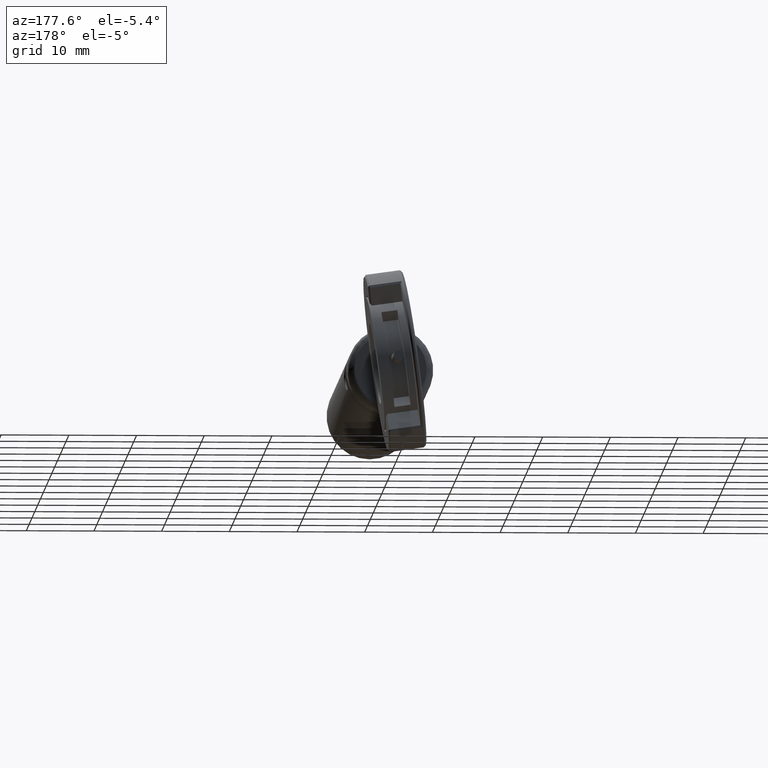
[diagram: clean part render]
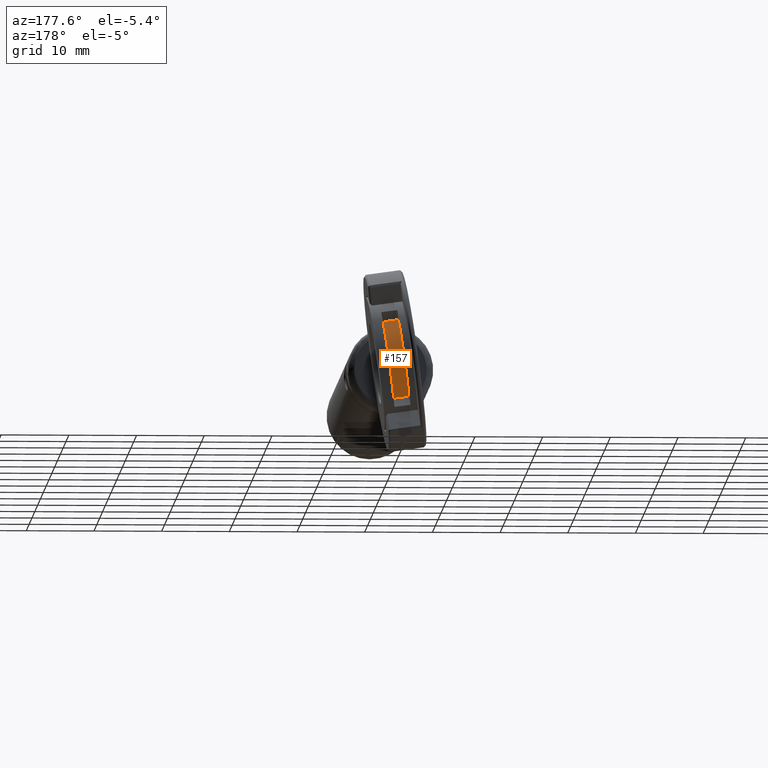
[diagram: same view with one face highlighted and labeled with its STEP entity id]
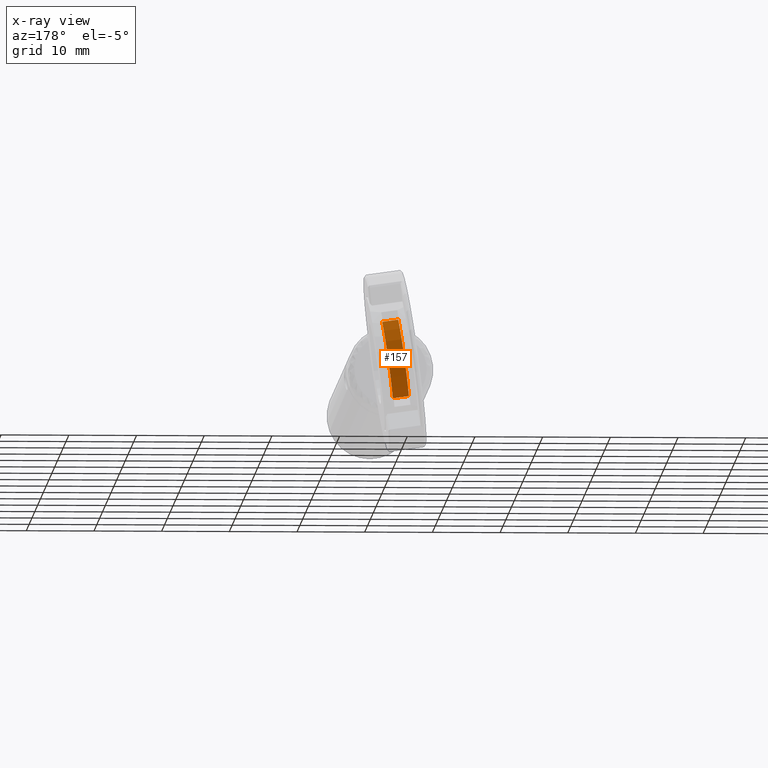
[diagram: x-ray of the same camera — body ghosted, the highlighted face saturated]
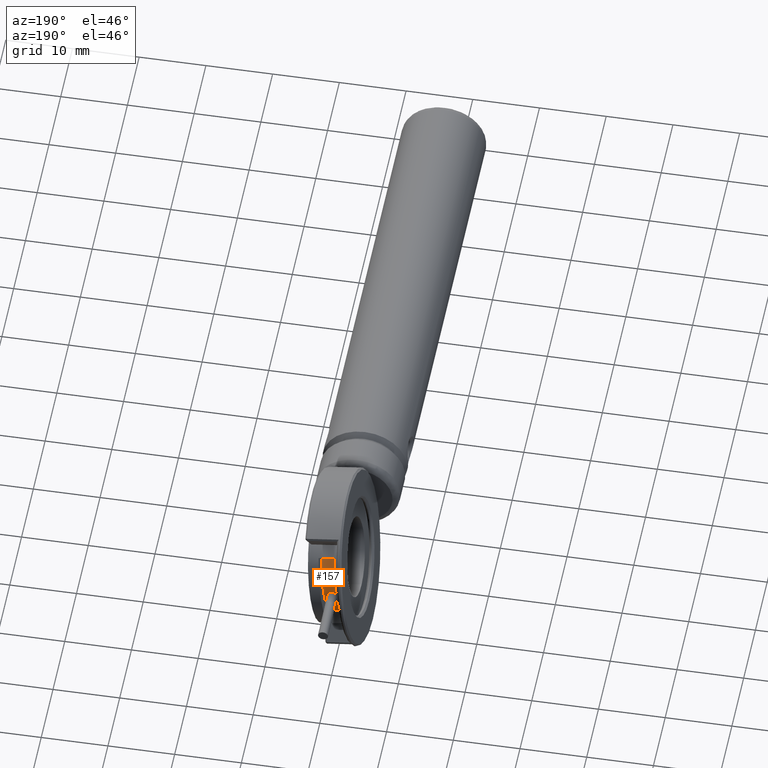
[diagram: same view with one face highlighted and labeled with its STEP entity id]
A machine part, auxiliary view. The second image highlights one B-rep face of the part: STEP entity #157.
The next image is the same camera in x-ray: the body ghosted, the highlighted face saturated — about 0% of this face is hidden behind the body in this view.
A second angle (auxiliary view) of the same face is appended — the face is thin or edge-on in the first view.
In plain terms, the highlighted cylindrical surface (partial cylindrical patch) has radius 8 mm, axis along (0.9902, 0, -0.1396).
Its self-contained STEP definition (entity closure, byte-faithful):
#8 = ORIENTED_EDGE ( 'NONE', *, *, #456, .F. ) ;
#17 = CARTESIAN_POINT ( 'NONE',  ( -48.96440231355102668, 57.92418038922212986, 17.72391761377403085 ) ) ;
#41 = CARTESIAN_POINT ( 'NONE',  ( -50.47737701710054381, 57.91702153067917180, 17.73716388966107260 ) ) ;
#56 = VECTOR ( 'NONE', #352, 1000.000000000000114 ) ;
#95 = CARTESIAN_POINT ( 'NONE',  ( -50.86879907538339296, 49.92581623896437293, 18.18410523959386893 ) ) ;
#151 = CARTESIAN_POINT ( 'NONE',  ( -48.97016056832901398, 57.92579807133946446, 17.82298105497869756 ) ) ;
#157 = ADVANCED_FACE ( 'NONE', ( #873, #725 ), #1180, .T. ) ;
#245 = ORIENTED_EDGE ( 'NONE', *, *, #292, .T. ) ;
#267 = AXIS2_PLACEMENT_3D ( 'NONE', #95, #695, #549 ) ;
#272 = EDGE_CURVE ( 'NONE', #1782, #1116, #872, .T. ) ;
#292 = EDGE_CURVE ( 'NONE', #414, #1782, #1552, .T. ) ;
#298 = CARTESIAN_POINT ( 'NONE',  ( -50.42235512206401893, 57.89853757902571374, 17.44823982211992330 ) ) ;
#317 = CARTESIAN_POINT ( 'NONE',  ( -49.34919883205746061, 57.87665733884514907, 17.07273011649019878 ) ) ;
#352 = DIRECTION ( 'NONE',  ( -0.9902015919893349949, -1.734723475976806902E-18, 0.1396452907254177311 ) ) ;
#357 = ORIENTED_EDGE ( 'NONE', *, *, #272, .T. ) ;
#372 = B_SPLINE_CURVE_WITH_KNOTS ( 'NONE', 3,
 ( #1058, #41, #1851, #298, #1501, #1198, #1374, #1357, #897, #1082, #317, #1813, #1228, #17, #151, #1695, #632, #484, #446, #1969, #1214, #453, #1832, #463, #1090, #1049 ),
 .UNSPECIFIED., .T., .F.,
 ( 4, 2, 2, 2, 2, 2, 2, 2, 2, 2, 2, 2, 4 ),
 ( 0.000000000000000000, 0.0002932021076270155380, 0.0005864042152540310760, 0.001172808430508083186, 0.001466010538135098561, 0.001759212645762114370, 0.002345616861016145121, 0.002638818968643159846, 0.002932021076270174137, 0.003518425291524194913, 0.003811627399151194459, 0.004104829506778194873, 0.004691233722032210444 ),
 .UNSPECIFIED. ) ;
#386 = VERTEX_POINT ( 'NONE', #645 ) ;
#407 = EDGE_LOOP ( 'NONE', ( #1226 ) ) ;
#414 = VERTEX_POINT ( 'NONE', #1119 ) ;
#446 = CARTESIAN_POINT ( 'NONE',  ( -49.42171741947120722, 57.91247504470794638, 18.44642108951323323 ) ) ;
#453 = CARTESIAN_POINT ( 'NONE',  ( -50.00290056594079147, 57.91746898937024923, 18.43292092866442289 ) ) ;
#456 = EDGE_CURVE ( 'NONE', #414, #386, #1125, .T. ) ;
#463 = CARTESIAN_POINT ( 'NONE',  ( -50.32982904977060201, 57.92639507734061510, 18.21110107652235754 ) ) ;
#469 = DIRECTION ( 'NONE',  ( -0.1395542542398922614, -0.03610262665451180464, -0.9895560673717243017 ) ) ;
#484 = CARTESIAN_POINT ( 'NONE',  ( -49.23925618357259992, 57.91797192485795875, 18.33839261213173444 ) ) ;
#508 = LINE ( 'NONE', #1719, #56 ) ;
#510 = CARTESIAN_POINT ( 'NONE',  ( -48.49231525460898951, 49.92581623896437293, 17.84895654185286418 ) ) ;
#549 = DIRECTION ( 'NONE',  ( -0.1395542542398922614, -0.03610262665451180464, -0.9895560673717243017 ) ) ;
#554 = CARTESIAN_POINT ( 'NONE',  ( -50.46354085334915851, 57.92060094040026286, 17.83527383166108038 ) ) ;
#632 = CARTESIAN_POINT ( 'NONE',  ( -49.06287333108023319, 57.92425535615964804, 18.10367734707536513 ) ) ;
#645 = CARTESIAN_POINT ( 'NONE',  ( -51.69336557047714820, 55.32343318486768879, 12.33724100305936489 ) ) ;
#658 = EDGE_LOOP ( 'NONE', ( #357, #1281, #8, #245 ) ) ;
#695 = DIRECTION ( 'NONE',  ( -0.9902015919893351059, -1.734723475976807094E-18, 0.1396452907254177311 ) ) ;
#725 = FACE_OUTER_BOUND ( 'NONE', #658, .T. ) ;
#743 = DIRECTION ( 'NONE',  ( -0.1395542542398914010, -0.03610262665451180464, -0.9895560673717244127 ) ) ;
#776 = AXIS2_PLACEMENT_3D ( 'NONE', #891, #1639, #743 ) ;
#801 = DIRECTION ( 'NONE',  ( -0.9902015919893351059, -1.734723475976807094E-18, 0.1396452907254177311 ) ) ;
#872 = CIRCLE ( 'NONE', #1379, 7.999999999999999112 ) ;
#873 = FACE_BOUND ( 'NONE', #407, .T. ) ;
#891 = CARTESIAN_POINT ( 'NONE',  ( -66.47474232846811049, 49.92581623896437293, 20.38496666039116079 ) ) ;
#897 = CARTESIAN_POINT ( 'NONE',  ( -49.62893676914925578, 57.86089588171113718, 16.98137230763229155 ) ) ;
#1041 = CARTESIAN_POINT ( 'NONE',  ( -47.72428759741506354, 55.73543661969930696, 23.29491325757642528 ) ) ;
#1049 = CARTESIAN_POINT ( 'NONE',  ( -50.46354085334917272, 57.92060094040026286, 17.83527383166108038 ) ) ;
#1058 = CARTESIAN_POINT ( 'NONE',  ( -50.46354085334917272, 57.92060094040026286, 17.83527383166108038 ) ) ;
#1082 = CARTESIAN_POINT ( 'NONE',  ( -49.43860772919549618, 57.87013295565881066, 17.03007641175430820 ) ) ;
#1090 = CARTESIAN_POINT ( 'NONE',  ( -50.43586852584640923, 57.92775975984245207, 18.03149371566108172 ) ) ;
#1116 = VERTEX_POINT ( 'NONE', #1510 ) ;
#1119 = CARTESIAN_POINT ( 'NONE',  ( -50.10077141818947410, 55.73543661969930696, 23.63006195531743003 ) ) ;
#1125 = CIRCLE ( 'NONE', #267, 7.999999999999999112 ) ;
#1180 = CYLINDRICAL_SURFACE ( 'NONE', #776, 7.999999999999998224 ) ;
#1198 = CARTESIAN_POINT ( 'NONE',  ( -50.20225363552365394, 57.86969383786246368, 17.12460257291838772 ) ) ;
#1214 = CARTESIAN_POINT ( 'NONE',  ( -49.81250597560641324, 57.91365382964307429, 18.48209173167043318 ) ) ;
#1226 = ORIENTED_EDGE ( 'NONE', *, *, #1920, .T. ) ;
#1228 = CARTESIAN_POINT ( 'NONE',  ( -49.00590994602662676, 57.91344225565894277, 17.42958829474715898 ) ) ;
#1252 = CARTESIAN_POINT ( 'NONE',  ( -65.70671467127419874, 55.73543661969930696, 25.83092337611472189 ) ) ;
#1281 = ORIENTED_EDGE ( 'NONE', *, *, #1683, .T. ) ;
#1357 = CARTESIAN_POINT ( 'NONE',  ( -49.72899727667541470, 57.85830415311046693, 16.97597100779161750 ) ) ;
#1374 = CARTESIAN_POINT ( 'NONE',  ( -50.01970708332478210, 57.85833106884598465, 17.01717689448413395 ) ) ;
#1379 = AXIS2_PLACEMENT_3D ( 'NONE', #510, #801, #469 ) ;
#1501 = CARTESIAN_POINT ( 'NONE',  ( -50.37877544402084595, 57.89095427989214215, 17.35833316561478057 ) ) ;
#1510 = CARTESIAN_POINT ( 'NONE',  ( -49.31688174970275185, 55.32343318486768879, 12.00209230531836191 ) ) ;
#1538 = VECTOR ( 'NONE', #1713, 1000.000000000000114 ) ;
#1552 = LINE ( 'NONE', #1252, #1538 ) ;
#1602 = VERTEX_POINT ( 'NONE', #554 ) ;
#1639 = DIRECTION ( 'NONE',  ( 0.9902015919893351059, 1.734723475976807094E-18, -0.1396452907254177311 ) ) ;
#1683 = EDGE_CURVE ( 'NONE', #1116, #386, #508, .T. ) ;
#1695 = CARTESIAN_POINT ( 'NONE',  ( -49.01933979578331702, 57.92583409228134173, 18.01344314822036097 ) ) ;
#1713 = DIRECTION ( 'NONE',  ( 0.9902015919893349949, 1.734723475976806902E-18, -0.1396452907254177311 ) ) ;
#1719 = CARTESIAN_POINT ( 'NONE',  ( -67.29930882356187283, 55.32343318486768879, 14.53810242385665497 ) ) ;
#1782 = VERTEX_POINT ( 'NONE', #1041 ) ;
#1813 = CARTESIAN_POINT ( 'NONE',  ( -49.11186546109404105, 57.89817943652254684, 17.25057446859178256 ) ) ;
#1832 = CARTESIAN_POINT ( 'NONE',  ( -50.09235519190335140, 57.92002776991523660, 18.38994244868917249 ) ) ;
#1851 = CARTESIAN_POINT ( 'NONE',  ( -50.47159986183692126, 57.91161483435337942, 17.63823585491225643 ) ) ;
#1920 = EDGE_CURVE ( 'NONE', #1602, #1602, #372, .T. ) ;
#1969 = CARTESIAN_POINT ( 'NONE',  ( -49.71242654953120166, 57.91246305502023262, 18.48762829985599154 ) ) ;